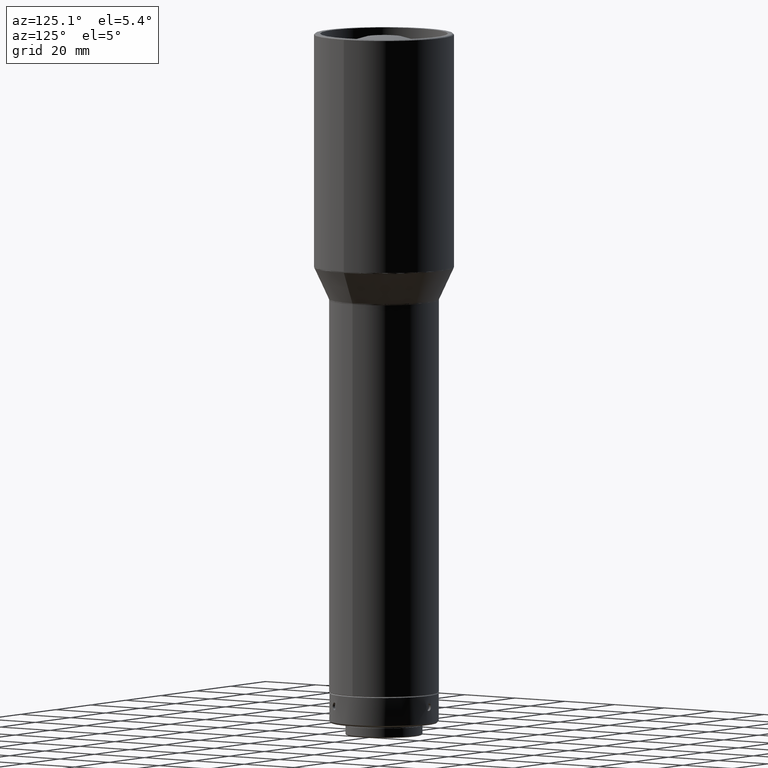
[diagram: clean part render]
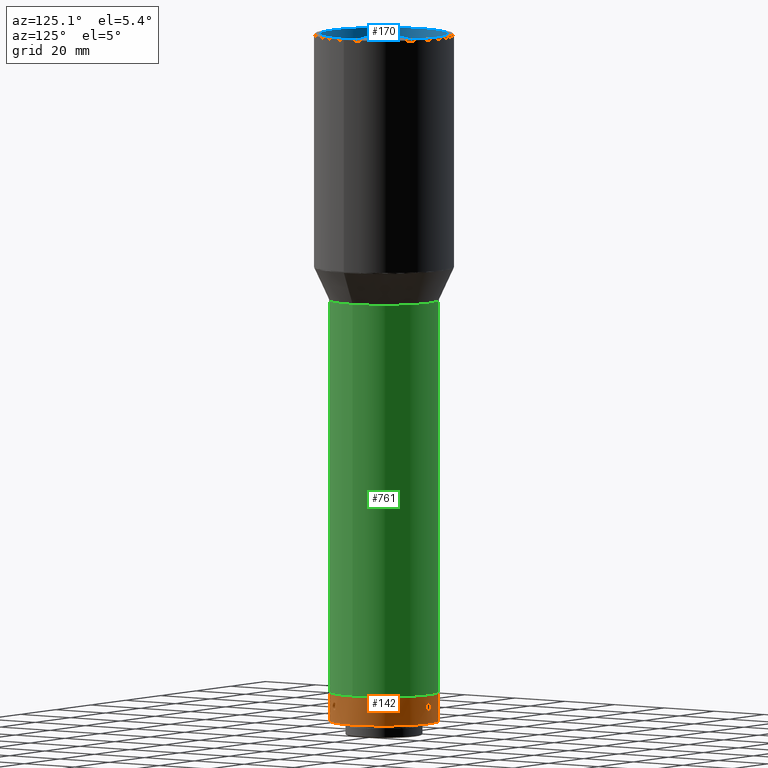
[diagram: same view with three faces highlighted in distinct colors, each labeled with its STEP entity id]
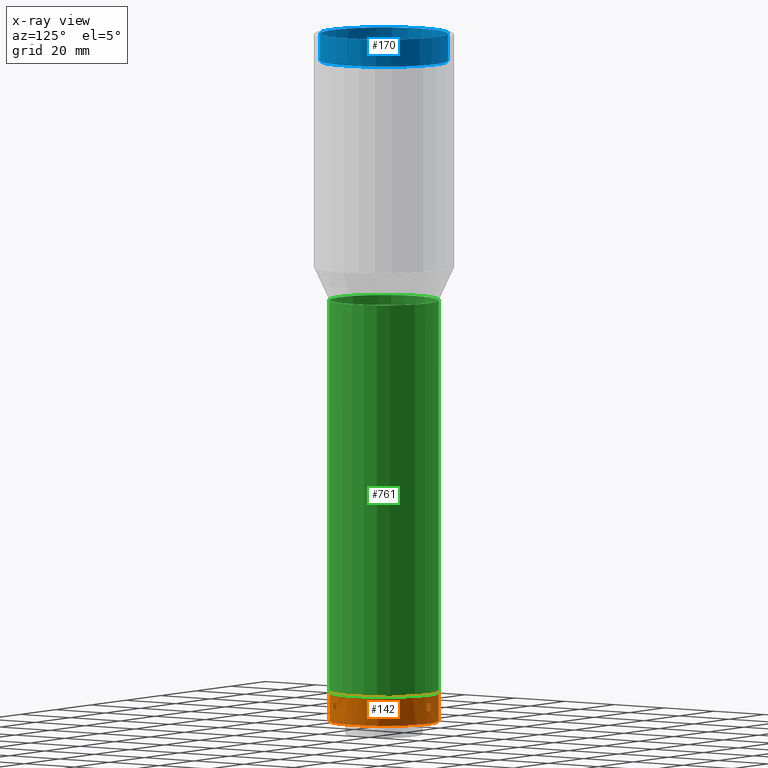
[diagram: x-ray of the same camera — body ghosted, the three highlighted faces saturated]
A machine part, auxiliary view with three faces highlighted in distinct colors.
The next image is the same camera in x-ray (body ghosted, the three faces saturated) — at least one of them is partly hidden behind the body in this view.
Their STEP definitions:

[orange] entity #142 — the highlighted cylindrical surface (bore or boss wall) has radius 18 mm, axis along (0, 0, 1).
#1 = CARTESIAN_POINT ( 'NONE',  ( -16.17582393315548472, -7.895740629197182336, -677.1560000000001764 ) ) ;
#7 = CARTESIAN_POINT ( 'NONE',  ( -16.17582393315549183, -7.895740629197166349, -676.9908007607349418 ) ) ;
#8 = CARTESIAN_POINT ( 'NONE',  ( -1.217386932848429026, 17.95889559784521339, -676.8283767959090937 ) ) ;
#13 = CARTESIAN_POINT ( 'NONE',  ( -0.6287950393457024667, 17.98965100100346248, -676.0633243457097024 ) ) ;
#14 = CARTESIAN_POINT ( 'NONE',  ( 15.19026408422148222, -9.657597898278542203, -676.1568305139829818 ) ) ;
#20 = CARTESIAN_POINT ( 'NONE',  ( 15.75062854503686616, -8.714374892937831518, -678.3730153772538642 ) ) ;
#27 = ORIENTED_EDGE ( 'NONE', *, *, #838, .T. ) ;
#29 = CARTESIAN_POINT ( 'NONE',  ( 0.3260722864606843685, 17.99768327192957429, -678.3737849096970649 ) ) ;
#33 = B_SPLINE_CURVE_WITH_KNOTS ( 'NONE', 3,
 ( #80, #780, #134, #608, #331, #14, #540, #801, #471, #139, #385, #337, #187, #450, #651, #61, #314, #850, #523, #786, #191, #807, #484, #20, #285, #421, #90, #217, #417, #222, #343, #354, #227, #411 ),
 .UNSPECIFIED., .T., .F.,
 ( 4, 2, 2, 2, 2, 2, 2, 2, 2, 2, 2, 2, 2, 2, 2, 2, 4 ),
 ( 0.000000000000000000, 0.0004885519476059258480, 0.0009771038952118516960, 0.001465655842817777544, 0.001954207790423703392, 0.002442759738029634444, 0.002931311685635565496, 0.003419863633241496548, 0.003908415580847427601, 0.004396967528453359086, 0.004885519476059289705, 0.005374071423665221191, 0.005862623371271151809, 0.006351175318877078091, 0.006839727266483003505, 0.007328279214088929787, 0.007816831161694855201 ),
 .UNSPECIFIED. ) ;
#38 = DIRECTION ( 'NONE',  ( 3.160814403572534137E-32, 3.224403732347684308E-17, 1.000000000000000000 ) ) ;
#44 = VERTEX_POINT ( 'NONE', #566 ) ;
#45 = DIRECTION ( 'NONE',  ( 0.000000000000000000, -1.000000000000000000, 0.000000000000000000 ) ) ;
#61 = CARTESIAN_POINT ( 'NONE',  ( 16.16155327807074826, -7.925159788840905328, -676.8283767959090937 ) ) ;
#69 = CARTESIAN_POINT ( 'NONE',  ( -0.1639394304986033224, 17.99999215467978431, -678.4058870273640878 ) ) ;
#73 = CARTESIAN_POINT ( 'NONE',  ( -15.26487600238796460, -9.539716451242936657, -678.2482961720307912 ) ) ;
#78 = CARTESIAN_POINT ( 'NONE',  ( 14.92582393315539235, -10.06080413865847767, -677.1560000000000628 ) ) ;
#80 = CARTESIAN_POINT ( 'NONE',  ( 14.92582393315539235, -10.06080413865847589, -677.1559999999999491 ) ) ;
#86 = ORIENTED_EDGE ( 'NONE', *, *, #404, .T. ) ;
#87 = CARTESIAN_POINT ( 'NONE',  ( -15.74948706598769377, -8.716454752419886987, -678.3737849096970649 ) ) ;
#90 = CARTESIAN_POINT ( 'NONE',  ( 15.42341477952702533, -9.281228519509944874, -678.3737849096972923 ) ) ;
#92 = AXIS2_PLACEMENT_3D ( 'NONE', #111, #288, #45 ) ;
#101 = EDGE_CURVE ( 'NONE', #621, #621, #33, .T. ) ;
#104 = B_SPLINE_CURVE_WITH_KNOTS ( 'NONE', 3,
 ( #180, #709, #115, #378, #582, #602, #150, #543, #805, #395, #810, #13, #474, #660, #794, #8, #280, #328, #208, #738, #409, #597, #263, #556, #69, #335, #29, #751, #323, #817, #728, #220, #676, #258 ),
 .UNSPECIFIED., .T., .F.,
 ( 4, 2, 2, 2, 2, 2, 2, 2, 2, 2, 2, 2, 2, 2, 2, 2, 4 ),
 ( 0.000000000000000000, 0.0004885519476059285585, 0.0009771038952118571170, 0.001465655842817785567, 0.001954207790423713800, 0.002442759738029641817, 0.002931311685635570267, 0.003419863633241497416, 0.003908415580847424999, 0.004396967528453353882, 0.004885519476059281031, 0.005374071423665209048, 0.005862623371271137064, 0.006351175318877064213, 0.006839727266482991362, 0.007328279214088919379, 0.007816831161694846528 ),
 .UNSPECIFIED. ) ;
#111 = CARTESIAN_POINT ( 'NONE',  ( 7.301760564668366470E-15, -1.121858894791991623E-13, -682.6559999999999491 ) ) ;
#115 = CARTESIAN_POINT ( 'NONE',  ( 1.217464335294319522, 17.95889008224752814, -676.8287009706280060 ) ) ;
#116 = ORIENTED_EDGE ( 'NONE', *, *, #710, .F. ) ;
#124 = AXIS2_PLACEMENT_3D ( 'NONE', #702, #759, #640 ) ;
#126 = CARTESIAN_POINT ( 'NONE',  ( -15.67042028344140725, -8.858020202463405823, -675.9061129727664365 ) ) ;
#134 = CARTESIAN_POINT ( 'NONE',  ( 14.94412286735164486, -10.03380008369042642, -676.8287009706278923 ) ) ;
#139 = CARTESIAN_POINT ( 'NONE',  ( 15.66957017123618279, -8.859523938431868473, -675.9058876239671463 ) ) ;
#142 = ADVANCED_FACE ( 'NONE', ( #360, #348, #275, #679, #626 ), #224, .T. ) ;
#143 = CIRCLE ( 'NONE', #92, 17.99999999999998579 ) ;
#150 = CARTESIAN_POINT ( 'NONE',  ( 0.6291994582050565166, 17.98962860717556111, -676.0637041845226349 ) ) ;
#152 = CARTESIAN_POINT ( 'NONE',  ( -14.94412316329296608, -10.03379964370071242, -677.4833008894951263 ) ) ;
#180 = CARTESIAN_POINT ( 'NONE',  ( 1.249999999999998668, 17.95654476785540865, -677.1559999999998354 ) ) ;
#182 = AXIS2_PLACEMENT_3D ( 'NONE', #760, #38, #814 ) ;
#183 = EDGE_LOOP ( 'NONE', ( #86 ) ) ;
#187 = CARTESIAN_POINT ( 'NONE',  ( 15.95789887597218204, -8.328212755427133018, -676.1549039321261034 ) ) ;
#191 = CARTESIAN_POINT ( 'NONE',  ( 16.06431448413912833, -8.121029507381926749, -677.9246321668028941 ) ) ;
#208 = CARTESIAN_POINT ( 'NONE',  ( -1.217463806281638528, 17.95889011854535156, -677.4833008894952400 ) ) ;
#214 = CARTESIAN_POINT ( 'NONE',  ( -16.10573089449706075, -8.037996915324919556, -677.7864259346065410 ) ) ;
#217 = CARTESIAN_POINT ( 'NONE',  ( 15.26509761156015443, -9.539377401184950145, -678.2486760156607488 ) ) ;
#219 = CARTESIAN_POINT ( 'NONE',  ( -15.01397453000991078, -9.928974310108470647, -676.5255754048878316 ) ) ;
#220 = CARTESIAN_POINT ( 'NONE',  ( 1.217386422865426088, 17.95889563292094948, -677.4836250172555765 ) ) ;
#222 = CARTESIAN_POINT ( 'NONE',  ( 15.06470539628271155, -9.852325387835605852, -677.9239201707626989 ) ) ;
#223 = CARTESIAN_POINT ( 'NONE',  ( -15.01384736159116784, -9.929166118684889852, -677.7860076652780208 ) ) ;
#224 = CYLINDRICAL_SURFACE ( 'NONE', #182, 17.99999999999998579 ) ;
#227 = CARTESIAN_POINT ( 'NONE',  ( 14.92582393315539591, -10.06080413865846701, -677.3211992392650700 ) ) ;
#252 = CARTESIAN_POINT ( 'NONE',  ( -15.75062872817967907, -8.714374564440142024, -675.9389846990359274 ) ) ;
#258 = CARTESIAN_POINT ( 'NONE',  ( 1.249999999999998668, 17.95654476785540865, -677.1559999999998354 ) ) ;
#263 = CARTESIAN_POINT ( 'NONE',  ( -0.6291987904827198719, 17.98962862930872575, -678.2482961720307912 ) ) ;
#271 = ORIENTED_EDGE ( 'NONE', *, *, #742, .T. ) ;
#275 = FACE_BOUND ( 'NONE', #614, .T. ) ;
#280 = CARTESIAN_POINT ( 'NONE',  ( -1.250000303081691522, 17.95654474675713885, -676.9908032969528904 ) ) ;
#283 = CARTESIAN_POINT ( 'NONE',  ( -15.42218430790382477, -9.283256999105431007, -678.3730153772537506 ) ) ;
#285 = CARTESIAN_POINT ( 'NONE',  ( 15.67042018912271217, -8.858020365846279276, -678.4058870273638604 ) ) ;
#288 = DIRECTION ( 'NONE',  ( 3.160814403572534137E-32, 3.224403732347684308E-17, 1.000000000000000000 ) ) ;
#290 = CARTESIAN_POINT ( 'NONE',  ( -17.99999999999997868, -1.108900436136605211E-13, -673.4559999999999036 ) ) ;
#314 = CARTESIAN_POINT ( 'NONE',  ( 16.17582406642460313, -7.895740356171824459, -676.9908032969530041 ) ) ;
#322 = CARTESIAN_POINT ( 'NONE',  ( -15.50735788173638952, -9.140483865457559531, -675.9058876239671463 ) ) ;
#323 = CARTESIAN_POINT ( 'NONE',  ( 0.7665048592950700623, 17.98405222760571220, -678.1570966175248714 ) ) ;
#326 = EDGE_LOOP ( 'NONE', ( #644 ) ) ;
#328 = CARTESIAN_POINT ( 'NONE',  ( -1.249999696914068759, 17.95654478895398753, -677.3212012896943861 ) ) ;
#331 = CARTESIAN_POINT ( 'NONE',  ( 15.06517464280624630, -9.851590384043143800, -676.3873688769147066 ) ) ;
#334 = CARTESIAN_POINT ( 'NONE',  ( -16.17582393315547762, -7.895740629197199212, -677.3211992392655247 ) ) ;
#335 = CARTESIAN_POINT ( 'NONE',  ( 0.1622121008445830959, 18.00000780388012700, -678.4061123759023531 ) ) ;
#337 = CARTESIAN_POINT ( 'NONE',  ( 15.89389229175804452, -8.450273022655025557, -676.0633243457098160 ) ) ;
#340 = CARTESIAN_POINT ( 'NONE',  ( -14.92582376334303262, -10.06080439058558262, -676.9908032969528904 ) ) ;
#343 = CARTESIAN_POINT ( 'NONE',  ( 15.01397497146082038, -9.928973643487971401, -677.7864259346066547 ) ) ;
#345 = CARTESIAN_POINT ( 'NONE',  ( -15.89389197149335864, -8.450273622267859608, -678.2486760156606351 ) ) ;
#348 = FACE_BOUND ( 'NONE', #326, .T. ) ;
#354 = CARTESIAN_POINT ( 'NONE',  ( 14.94416663059031158, -10.03373538488443018, -677.4836250172559176 ) ) ;
#360 = FACE_OUTER_BOUND ( 'NONE', #843, .T. ) ;
#368 = VERTEX_POINT ( 'NONE', #290 ) ;
#378 = CARTESIAN_POINT ( 'NONE',  ( 1.091987193791653876, 17.96695623533816644, -676.5259936262732481 ) ) ;
#385 = CARTESIAN_POINT ( 'NONE',  ( 15.74948724688818302, -8.716454428236497520, -675.9382151631306215 ) ) ;
#395 = CARTESIAN_POINT ( 'NONE',  ( -0.1622122895000074339, 18.00000780388917576, -675.9058876239671463 ) ) ;
#397 = CARTESIAN_POINT ( 'NONE',  ( -15.42341458922619069, -9.281228838266036618, -675.9382151631302804 ) ) ;
#401 = CARTESIAN_POINT ( 'NONE',  ( -14.94416634522245602, -10.03373580900457185, -676.8283767959090937 ) ) ;
#404 = EDGE_CURVE ( 'NONE', #548, #548, #104, .T. ) ;
#408 = CARTESIAN_POINT ( 'NONE',  ( -15.66957007690074022, -8.859524101807542351, -678.4061123759028078 ) ) ;
#409 = CARTESIAN_POINT ( 'NONE',  ( -0.9991393837938727929, 17.97261919133758568, -677.9246321668030077 ) ) ;
#411 = CARTESIAN_POINT ( 'NONE',  ( 14.92582393315539235, -10.06080413865847589, -677.1559999999999491 ) ) ;
#417 = CARTESIAN_POINT ( 'NONE',  ( 15.19139366244525924, -9.655838794076746723, -678.1570966175247577 ) ) ;
#421 = CARTESIAN_POINT ( 'NONE',  ( 15.50735797605616995, -9.140483702072849326, -678.4061123759021257 ) ) ;
#448 = CARTESIAN_POINT ( 'NONE',  ( -16.16158720264608917, -7.925089998557340643, -676.8287009706281196 ) ) ;
#450 = CARTESIAN_POINT ( 'NONE',  ( 16.06471715756164187, -8.120254114432471582, -676.3880808980901520 ) ) ;
#462 = CARTESIAN_POINT ( 'NONE',  ( -16.10583412538207781, -8.037789467238194874, -676.5259936262731344 ) ) ;
#471 = CARTESIAN_POINT ( 'NONE',  ( 15.50648066428975902, -9.141971952207594398, -675.9061129727667776 ) ) ;
#474 = CARTESIAN_POINT ( 'NONE',  ( -0.7665056236648111199, 17.98405219532843091, -676.1549039321258761 ) ) ;
#484 = CARTESIAN_POINT ( 'NONE',  ( 15.89407479287064184, -8.449912178066051993, -678.2482961720306776 ) ) ;
#516 = CIRCLE ( 'NONE', #124, 17.99999999999998579 ) ;
#523 = CARTESIAN_POINT ( 'NONE',  ( 16.16158696957450758, -7.925090474844914468, -677.4833008894952400 ) ) ;
#540 = CARTESIAN_POINT ( 'NONE',  ( 15.26487564935878360, -9.539717018441095320, -676.0637041845228623 ) ) ;
#542 = CARTESIAN_POINT ( 'NONE',  ( -15.19139325230752036, -9.655839439901564347, -676.1549039321258761 ) ) ;
#543 = CARTESIAN_POINT ( 'NONE',  ( 0.3284446131915376155, 17.99763188640051581, -675.9389846990362685 ) ) ;
#548 = VERTEX_POINT ( 'NONE', #663 ) ;
#556 = CARTESIAN_POINT ( 'NONE',  ( -0.3284442371330616450, 17.99763189204299607, -678.3730153772537506 ) ) ;
#558 = CARTESIAN_POINT ( 'NONE',  ( -15.50648075862410025, -9.141971788833766155, -678.4058870273639741 ) ) ;
#566 = CARTESIAN_POINT ( 'NONE',  ( 7.301760564668366470E-15, -18.00000000000009592, -682.6559999999999491 ) ) ;
#569 = VERTEX_POINT ( 'NONE', #826 ) ;
#582 = CARTESIAN_POINT ( 'NONE',  ( 0.9991402188564724174, 17.97261914514076864, -676.3873688769143655 ) ) ;
#597 = CARTESIAN_POINT ( 'NONE',  ( -0.7685923121488336118, 17.98395356874539175, -678.1551700424839737 ) ) ;
#602 = CARTESIAN_POINT ( 'NONE',  ( 0.7685930773333982113, 17.98395353626928284, -676.1568305139834365 ) ) ;
#605 = CARTESIAN_POINT ( 'NONE',  ( -16.17582393315548472, -7.895740629197182336, -677.1560000000001764 ) ) ;
#608 = CARTESIAN_POINT ( 'NONE',  ( 15.01384693159026895, -9.929166768100209595, -676.5259936262730207 ) ) ;
#614 = EDGE_LOOP ( 'NONE', ( #27 ) ) ;
#621 = VERTEX_POINT ( 'NONE', #78 ) ;
#626 = FACE_BOUND ( 'NONE', #183, .T. ) ;
#640 = DIRECTION ( 'NONE',  ( -1.000000000000000000, 5.551115123125791330E-17, 0.000000000000000000 ) ) ;
#644 = ORIENTED_EDGE ( 'NONE', *, *, #101, .T. ) ;
#651 = CARTESIAN_POINT ( 'NONE',  ( 16.10573125108190951, -8.037996199706970657, -676.5255754048877179 ) ) ;
#660 = CARTESIAN_POINT ( 'NONE',  ( -1.000012230497399734, 17.97258022027618196, -676.3880808980902657 ) ) ;
#663 = CARTESIAN_POINT ( 'NONE',  ( 1.249999999999998668, 17.95654476785540865, -677.1559999999999491 ) ) ;
#668 = CARTESIAN_POINT ( 'NONE',  ( -16.16155305345584026, -7.925160248036777766, -677.4836250172559176 ) ) ;
#676 = CARTESIAN_POINT ( 'NONE',  ( 1.249999999999998890, 17.95654476785540865, -677.3211992392647289 ) ) ;
#679 = FACE_OUTER_BOUND ( 'NONE', #808, .T. ) ;
#681 = CARTESIAN_POINT ( 'NONE',  ( -16.06471677035729329, -8.120254879791630742, -677.9239201707626989 ) ) ;
#683 = CARTESIAN_POINT ( 'NONE',  ( -15.19026449493901509, -9.657597251847134245, -678.1551700424839737 ) ) ;
#690 = B_SPLINE_CURVE_WITH_KNOTS ( 'NONE', 3,
 ( #1, #7, #448, #462, #727, #712, #721, #252, #126, #322, #397, #809, #542, #732, #219, #401, #340, #803, #152, #223, #737, #683, #73, #283, #558, #408, #87, #345, #755, #681, #214, #668, #334, #605 ),
 .UNSPECIFIED., .T., .F.,
 ( 4, 2, 2, 2, 2, 2, 2, 2, 2, 2, 2, 2, 2, 2, 2, 2, 4 ),
 ( 0.000000000000000000, 0.0004885519476059288838, 0.0009771038952118577675, 0.001465655842817786651, 0.001954207790423715535, 0.002442759738029644419, 0.002931311685635573303, 0.003419863633241502186, 0.003908415580847431070, 0.004396967528453359954, 0.004885519476059288838, 0.005374071423665217721, 0.005862623371271146605, 0.006351175318877075489, 0.006839727266483004373, 0.007328279214088933256, 0.007816831161694862140 ),
 .UNSPECIFIED. ) ;
#702 = CARTESIAN_POINT ( 'NONE',  ( 7.301760564668366470E-15, -1.118892443358231619E-13, -673.4559999999999036 ) ) ;
#709 = CARTESIAN_POINT ( 'NONE',  ( 1.249999999999998446, 17.95654476785540865, -676.9908007607349418 ) ) ;
#710 = EDGE_CURVE ( 'NONE', #368, #368, #516, .T. ) ;
#712 = CARTESIAN_POINT ( 'NONE',  ( -15.95885716155508938, -8.326355637990987546, -676.1568305139832091 ) ) ;
#721 = CARTESIAN_POINT ( 'NONE',  ( -15.89407510756405628, -8.449911588734721590, -676.0637041845226349 ) ) ;
#727 = CARTESIAN_POINT ( 'NONE',  ( -16.06431486166291833, -8.121028761097882409, -676.3873688769147066 ) ) ;
#728 = CARTESIAN_POINT ( 'NONE',  ( 1.091755923036141773, 17.96697055881263339, -677.7864259346065410 ) ) ;
#732 = CARTESIAN_POINT ( 'NONE',  ( -15.06470492706439401, -9.852326105843980386, -676.3880808980899246 ) ) ;
#737 = CARTESIAN_POINT ( 'NONE',  ( -15.06517510034527518, -9.851589683955930710, -677.9246321668028941 ) ) ;
#738 = CARTESIAN_POINT ( 'NONE',  ( -1.091986416381317326, 17.96695628302218140, -677.7860076652777934 ) ) ;
#742 = EDGE_CURVE ( 'NONE', #44, #44, #143, .T. ) ;
#751 = CARTESIAN_POINT ( 'NONE',  ( 0.6287943599332114220, 17.98965102345255218, -678.2486760156608625 ) ) ;
#755 = CARTESIAN_POINT ( 'NONE',  ( -15.95789852174031864, -8.328213433529226606, -678.1570966175248714 ) ) ;
#759 = DIRECTION ( 'NONE',  ( 3.160814403572534137E-32, 3.224403732347684308E-17, 1.000000000000000000 ) ) ;
#760 = CARTESIAN_POINT ( 'NONE',  ( 7.301760564668366470E-15, -1.118795711246261205E-13, -673.1559999999999491 ) ) ;
#780 = CARTESIAN_POINT ( 'NONE',  ( 14.92582393315538880, -10.06080413865848833, -676.9908007607349418 ) ) ;
#786 = CARTESIAN_POINT ( 'NONE',  ( 16.10583377797238214, -8.037790164337573984, -677.7860076652780208 ) ) ;
#794 = CARTESIAN_POINT ( 'NONE',  ( -1.091756721072166814, 17.96697050981516952, -676.5255754048877179 ) ) ;
#801 = CARTESIAN_POINT ( 'NONE',  ( 15.42218411498792108, -9.283257321960610042, -675.9389846990361548 ) ) ;
#803 = CARTESIAN_POINT ( 'NONE',  ( -14.92582410297036333, -10.06080388672747006, -677.3212012896940450 ) ) ;
#805 = CARTESIAN_POINT ( 'NONE',  ( 0.1639396191514463641, 17.99999215467074620, -675.9061129727660955 ) ) ;
#807 = CARTESIAN_POINT ( 'NONE',  ( 15.95885680708786936, -8.326356316898520404, -678.1551700424840874 ) ) ;
#808 = EDGE_LOOP ( 'NONE', ( #116 ) ) ;
#809 = CARTESIAN_POINT ( 'NONE',  ( -15.26509725241252191, -9.539377978348708709, -676.0633243457095887 ) ) ;
#810 = CARTESIAN_POINT ( 'NONE',  ( -0.3260726576621879036, 17.99768326650228190, -675.9382151631305078 ) ) ;
#814 = DIRECTION ( 'NONE',  ( 0.000000000000000000, -1.000000000000000000, 0.000000000000000000 ) ) ;
#817 = CARTESIAN_POINT ( 'NONE',  ( 1.000011374074578407, 17.97258026762696659, -677.9239201707623579 ) ) ;
#826 = CARTESIAN_POINT ( 'NONE',  ( -16.17582393315548828, -7.895740629197182336, -677.1560000000000628 ) ) ;
#838 = EDGE_CURVE ( 'NONE', #569, #569, #690, .T. ) ;
#843 = EDGE_LOOP ( 'NONE', ( #271 ) ) ;
#850 = CARTESIAN_POINT ( 'NONE',  ( 16.17582379988434838, -7.895740902226777713, -677.3212012896941587 ) ) ;

[blue] entity #170 — the highlighted cylindrical surface (bore or boss wall) has radius 21 mm, axis along (-0, -0, 1).
#18 = DIRECTION ( 'NONE',  ( 0.000000000000000000, 0.000000000000000000, 1.000000000000000000 ) ) ;
#35 = DIRECTION ( 'NONE',  ( -0.000000000000000000, -0.000000000000000000, 1.000000000000000000 ) ) ;
#40 = CIRCLE ( 'NONE', #514, 21.00000000000000000 ) ;
#58 = ORIENTED_EDGE ( 'NONE', *, *, #500, .F. ) ;
#72 = ORIENTED_EDGE ( 'NONE', *, *, #300, .T. ) ;
#88 = DIRECTION ( 'NONE',  ( 1.000000000000000000, 0.000000000000000000, 0.000000000000000000 ) ) ;
#170 = ADVANCED_FACE ( 'NONE', ( #356, #210 ), #613, .F. ) ;
#194 = DIRECTION ( 'NONE',  ( 0.000000000000000000, 0.000000000000000000, 1.000000000000000000 ) ) ;
#210 = FACE_OUTER_BOUND ( 'NONE', #782, .T. ) ;
#267 = CARTESIAN_POINT ( 'NONE',  ( 21.00000000000000000, 1.355345421721433986E-15, -456.0000000000000000 ) ) ;
#278 = AXIS2_PLACEMENT_3D ( 'NONE', #549, #18, #88 ) ;
#300 = EDGE_CURVE ( 'NONE', #675, #675, #40, .T. ) ;
#350 = VERTEX_POINT ( 'NONE', #601 ) ;
#356 = FACE_OUTER_BOUND ( 'NONE', #744, .T. ) ;
#432 = AXIS2_PLACEMENT_3D ( 'NONE', #623, #35, #561 ) ;
#500 = EDGE_CURVE ( 'NONE', #350, #350, #587, .T. ) ;
#514 = AXIS2_PLACEMENT_3D ( 'NONE', #655, #194, #722 ) ;
#549 = CARTESIAN_POINT ( 'NONE',  ( 0.000000000000000000, 1.355345421721433986E-15, -465.0000000000000000 ) ) ;
#561 = DIRECTION ( 'NONE',  ( 1.000000000000000000, 0.000000000000000000, 0.000000000000000000 ) ) ;
#587 = CIRCLE ( 'NONE', #278, 21.00000000000000000 ) ;
#601 = CARTESIAN_POINT ( 'NONE',  ( 21.00000000000000000, 1.355345421721433986E-15, -465.0000000000000000 ) ) ;
#613 = CYLINDRICAL_SURFACE ( 'NONE', #432, 21.00000000000000000 ) ;
#623 = CARTESIAN_POINT ( 'NONE',  ( 0.000000000000000000, 1.355345421721433986E-15, -465.0000000000000000 ) ) ;
#655 = CARTESIAN_POINT ( 'NONE',  ( 0.000000000000000000, 1.355345421721433986E-15, -456.0000000000000000 ) ) ;
#675 = VERTEX_POINT ( 'NONE', #267 ) ;
#722 = DIRECTION ( 'NONE',  ( 1.000000000000000000, 0.000000000000000000, 0.000000000000000000 ) ) ;
#744 = EDGE_LOOP ( 'NONE', ( #58 ) ) ;
#782 = EDGE_LOOP ( 'NONE', ( #72 ) ) ;

[green] entity #761 — the highlighted cylindrical surface (bore or boss wall) has radius 18 mm, axis along (0, 0, 1).
#30 = CIRCLE ( 'NONE', #390, 17.99999999999998579 ) ;
#36 = CARTESIAN_POINT ( 'NONE',  ( 17.99999999999998579, 1.355345421721433986E-15, -673.0560000000001537 ) ) ;
#99 = FACE_OUTER_BOUND ( 'NONE', #108, .T. ) ;
#108 = EDGE_LOOP ( 'NONE', ( #525 ) ) ;
#118 = CARTESIAN_POINT ( 'NONE',  ( -7.523678467577149378E-32, 1.355345421721433986E-15, -543.9442292651908701 ) ) ;
#175 = DIRECTION ( 'NONE',  ( 0.000000000000000000, 0.000000000000000000, 1.000000000000000000 ) ) ;
#189 = DIRECTION ( 'NONE',  ( 1.000000000000000000, 0.000000000000000000, 0.000000000000000000 ) ) ;
#235 = CARTESIAN_POINT ( 'NONE',  ( -7.523678467577149378E-32, 1.355345421721433986E-15, -673.0560000000001537 ) ) ;
#248 = DIRECTION ( 'NONE',  ( -0.000000000000000000, -0.000000000000000000, -1.000000000000000000 ) ) ;
#294 = CARTESIAN_POINT ( 'NONE',  ( 17.99999999999998579, 1.355345421721433986E-15, -543.9442292651908701 ) ) ;
#313 = AXIS2_PLACEMENT_3D ( 'NONE', #394, #783, #189 ) ;
#377 = DIRECTION ( 'NONE',  ( 1.000000000000000000, 0.000000000000000000, 0.000000000000000000 ) ) ;
#390 = AXIS2_PLACEMENT_3D ( 'NONE', #235, #175, #827 ) ;
#394 = CARTESIAN_POINT ( 'NONE',  ( -7.523678467577149378E-32, 1.355345421721433986E-15, -456.0000000000000000 ) ) ;
#467 = VERTEX_POINT ( 'NONE', #36 ) ;
#479 = EDGE_LOOP ( 'NONE', ( #851 ) ) ;
#525 = ORIENTED_EDGE ( 'NONE', *, *, #667, .T. ) ;
#581 = FACE_OUTER_BOUND ( 'NONE', #479, .T. ) ;
#667 = EDGE_CURVE ( 'NONE', #467, #467, #30, .T. ) ;
#696 = CIRCLE ( 'NONE', #812, 17.99999999999998579 ) ;
#697 = VERTEX_POINT ( 'NONE', #294 ) ;
#761 = ADVANCED_FACE ( 'NONE', ( #99, #581 ), #844, .T. ) ;
#781 = EDGE_CURVE ( 'NONE', #697, #697, #696, .T. ) ;
#783 = DIRECTION ( 'NONE',  ( 0.000000000000000000, 0.000000000000000000, 1.000000000000000000 ) ) ;
#812 = AXIS2_PLACEMENT_3D ( 'NONE', #118, #248, #377 ) ;
#827 = DIRECTION ( 'NONE',  ( 1.000000000000000000, 0.000000000000000000, 0.000000000000000000 ) ) ;
#844 = CYLINDRICAL_SURFACE ( 'NONE', #313, 17.99999999999998579 ) ;
#851 = ORIENTED_EDGE ( 'NONE', *, *, #781, .T. ) ;